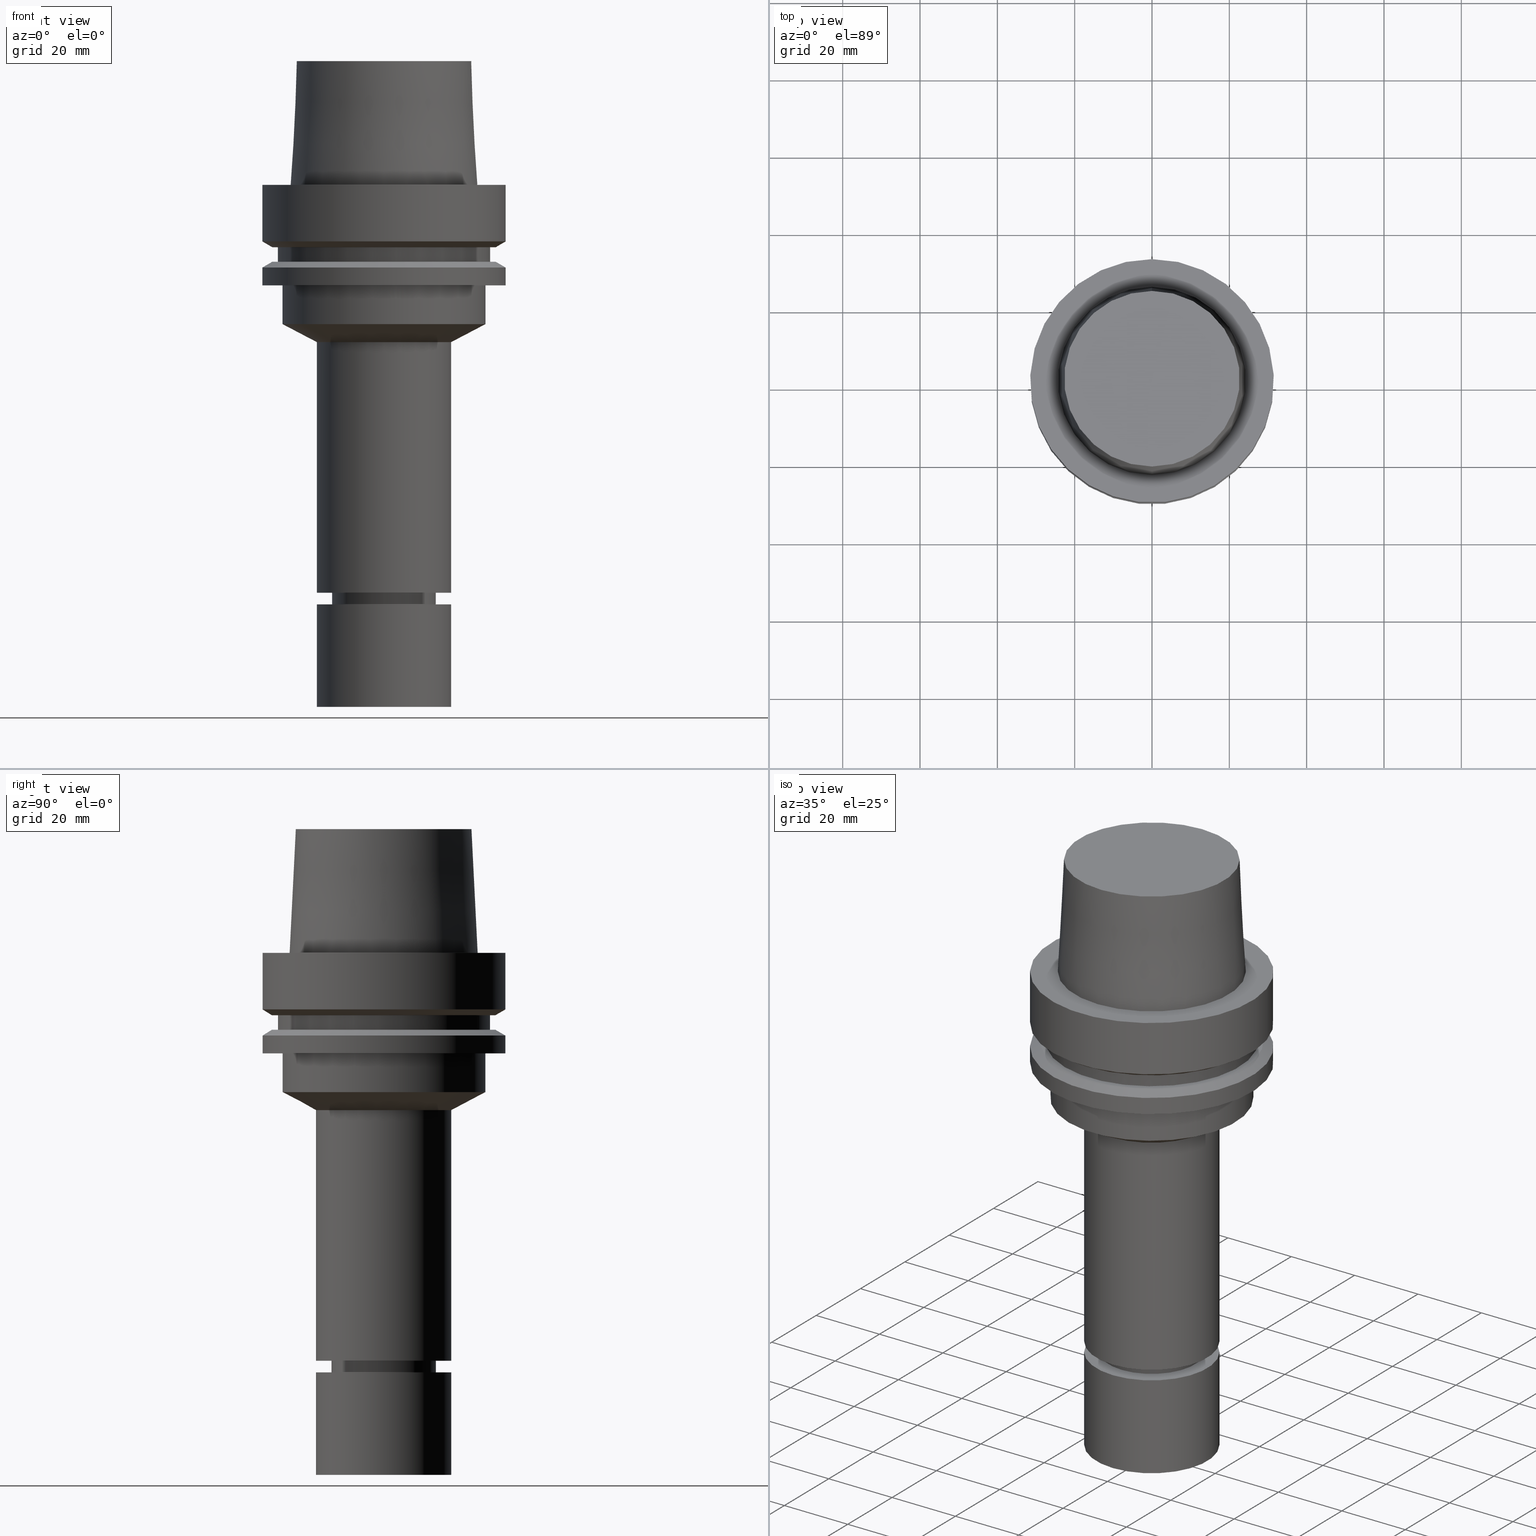
[diagram: canonical four-view strip — front | top / right | iso, engineering-drawing reading convention]
A machine part, canonical four-view strip (front | top / right | iso — engineering-drawing reading convention). The complete STEP part file that produces these views, byte-faithful:
ISO-10303-21;
HEADER;
FILE_DESCRIPTION((''),'1');
FILE_NAME('V:/90_\X2\53D65F9730C730FC30BF\X0\/00_\X2\6DE18DEF30C730FC30BF\X0\/ALL/HSK-BKUS\X2\52A05DE556F3\X0\_201801/HSK-A63-MEGAER/HSK-A63-MEGAER20-135NL.stp','2018-02-01T02:46:07',(''),(''),'Spatial Interop R21 SP3','Kubotek KeyCreator 2011 V10.0.2 (22737)',' ');
FILE_SCHEMA(('automotive_design'));
ENDSEC;
DATA;
#1=MECHANICAL_DESIGN_GEOMETRIC_PRESENTATION_REPRESENTATION(' ',(#14,#15,#16,#17,#18,#19,#20,#21,#22,#23,#24,#25,#26,#27,#28,#29,#30,#31,#32,#33,#34,#35,#36,#37,#38,#39,#40,#41,#42,#43,#44,#45,#46,#47,#48,#49,#50,#51,#52,#53,#54,#55,#56,#57,#58,#59),#10);
#2=PRODUCT_DEFINITION_CONTEXT('',#60,'design');
#3=APPLICATION_PROTOCOL_DEFINITION('INTERNATIONAL STANDARD','automotive_design',1994,#60);
#4=PRODUCT_CATEGORY_RELATIONSHIP('NONE','NONE',#61,#62);
#5=SHAPE_DEFINITION_REPRESENTATION(#63,#64);
#6=PRODUCT_DEFINITION_CONTEXT('',#65,'design');
#7=APPLICATION_PROTOCOL_DEFINITION('INTERNATIONAL STANDARD','automotive_design',1994,#65);
#8=PRODUCT_CATEGORY_RELATIONSHIP('NONE','NONE',#66,#67);
#9=SHAPE_DEFINITION_REPRESENTATION(#68,#69);
#10= (GEOMETRIC_REPRESENTATION_CONTEXT(3)GLOBAL_UNCERTAINTY_ASSIGNED_CONTEXT((#72))GLOBAL_UNIT_ASSIGNED_CONTEXT((#74,#75,#76))REPRESENTATION_CONTEXT('NONE','WORKSPACE'));
#14=STYLED_ITEM('',(#78,#79),#80);
#15=STYLED_ITEM('',(#81,#82),#83);
#16=STYLED_ITEM('',(#84,#85),#86);
#17=STYLED_ITEM('',(#87),#88);
#18=STYLED_ITEM('',(#89,#90),#91);
#19=STYLED_ITEM('',(#92,#93),#94);
#20=STYLED_ITEM('',(#95,#96),#97);
#21=STYLED_ITEM('',(#98),#99);
#22=STYLED_ITEM('',(#100,#101),#102);
#23=STYLED_ITEM('',(#103,#104),#105);
#24=STYLED_ITEM('',(#106,#107),#108);
#25=STYLED_ITEM('',(#109,#110),#111);
#26=STYLED_ITEM('',(#112),#113);
#27=STYLED_ITEM('',(#114),#115);
#28=STYLED_ITEM('',(#116),#117);
#29=STYLED_ITEM('',(#118),#119);
#30=STYLED_ITEM('',(#120),#121);
#31=STYLED_ITEM('',(#122,#123),#124);
#32=STYLED_ITEM('',(#125),#126);
#33=STYLED_ITEM('',(#127,#128),#129);
#34=STYLED_ITEM('',(#130),#131);
#35=STYLED_ITEM('',(#132,#133),#134);
#36=STYLED_ITEM('',(#135,#136),#137);
#37=STYLED_ITEM('',(#138,#139),#140);
#38=STYLED_ITEM('',(#141,#142),#143);
#39=STYLED_ITEM('',(#144,#145),#146);
#40=STYLED_ITEM('',(#147,#148),#149);
#41=STYLED_ITEM('',(#150,#151),#152);
#42=STYLED_ITEM('',(#153,#154),#155);
#43=STYLED_ITEM('',(#156),#157);
#44=STYLED_ITEM('',(#158),#159);
#45=STYLED_ITEM('',(#160,#161),#162);
#46=STYLED_ITEM('',(#163),#164);
#47=STYLED_ITEM('',(#165),#166);
#48=STYLED_ITEM('',(#167,#168),#169);
#49=STYLED_ITEM('',(#170,#171),#172);
#50=STYLED_ITEM('',(#173,#174),#175);
#51=STYLED_ITEM('',(#176),#177);
#52=STYLED_ITEM('',(#178,#179),#180);
#53=STYLED_ITEM('',(#181),#182);
#54=STYLED_ITEM('',(#183),#184);
#55=STYLED_ITEM('',(#185),#186);
#56=STYLED_ITEM('',(#187),#188);
#57=STYLED_ITEM('',(#189),#190);
#58=STYLED_ITEM('',(#191),#192);
#59=STYLED_ITEM('',(#193),#194);
#60=APPLICATION_CONTEXT(' ');
#61=PRODUCT_CATEGORY('part','NONE');
#62=PRODUCT_RELATED_PRODUCT_CATEGORY('detail',' ',(#195));
#63=PRODUCT_DEFINITION_SHAPE('NONE','NONE',#196);
#64=ADVANCED_BREP_SHAPE_REPRESENTATION('Unnamed[1]',(#94,#197),#10);
#65=APPLICATION_CONTEXT(' ');
#66=PRODUCT_CATEGORY('part','NONE');
#67=PRODUCT_RELATED_PRODUCT_CATEGORY('detail',' ',(#198));
#68=PRODUCT_DEFINITION_SHAPE('NONE','NONE',#199);
#69=ADVANCED_BREP_SHAPE_REPRESENTATION('Unnamed[1]',(#169,#200),#10);
#72=UNCERTAINTY_MEASURE_WITH_UNIT(LENGTH_MEASURE(1.0E-006),#74,'','');
#74= (CONVERSION_BASED_UNIT('MILLIMETRE',#203)LENGTH_UNIT()NAMED_UNIT(#206));
#75= (NAMED_UNIT(#208)PLANE_ANGLE_UNIT()SI_UNIT($,.RADIAN.));
#76= (NAMED_UNIT(#208)SOLID_ANGLE_UNIT()SI_UNIT($,.STERADIAN.));
#78=PRESENTATION_STYLE_ASSIGNMENT((#214));
#79=PRESENTATION_STYLE_ASSIGNMENT((#215));
#80=ADVANCED_FACE('Unnamed[1]',(#216,#217),#218,.T.);
#81=PRESENTATION_STYLE_ASSIGNMENT((#219));
#82=PRESENTATION_STYLE_ASSIGNMENT((#220));
#83=ADVANCED_FACE('Unnamed[1]',(#221,#222),#223,.T.);
#84=PRESENTATION_STYLE_ASSIGNMENT((#224));
#85=PRESENTATION_STYLE_ASSIGNMENT((#225));
#86=ADVANCED_FACE('Unnamed[1]',(#226,#227),#228,.T.);
#87=PRESENTATION_STYLE_ASSIGNMENT((#229));
#88=EDGE_CURVE('Unnamed[1]',#230,#230,#231,.T.);
#89=PRESENTATION_STYLE_ASSIGNMENT((#232));
#90=PRESENTATION_STYLE_ASSIGNMENT((#233));
#91=ADVANCED_FACE('Unnamed[1]',(#234,#235),#236,.T.);
#92=PRESENTATION_STYLE_ASSIGNMENT((#237));
#93=PRESENTATION_STYLE_ASSIGNMENT((#238));
#94=MANIFOLD_SOLID_BREP('Unnamed[1]',#239);
#95=PRESENTATION_STYLE_ASSIGNMENT((#240));
#96=PRESENTATION_STYLE_ASSIGNMENT((#241));
#97=ADVANCED_FACE('Unnamed[1]',(#242,#243),#244,.T.);
#98=PRESENTATION_STYLE_ASSIGNMENT((#245));
#99=EDGE_CURVE('Unnamed[1]',#246,#246,#247,.T.);
#100=PRESENTATION_STYLE_ASSIGNMENT((#248));
#101=PRESENTATION_STYLE_ASSIGNMENT((#249));
#102=ADVANCED_FACE('Unnamed[1]',(#250),#251,.T.);
#103=PRESENTATION_STYLE_ASSIGNMENT((#252));
#104=PRESENTATION_STYLE_ASSIGNMENT((#253));
#105=ADVANCED_FACE('Unnamed[1]',(#254,#255),#256,.T.);
#106=PRESENTATION_STYLE_ASSIGNMENT((#257));
#107=PRESENTATION_STYLE_ASSIGNMENT((#258));
#108=ADVANCED_FACE('Unnamed[1]',(#259),#260,.T.);
#109=PRESENTATION_STYLE_ASSIGNMENT((#261));
#110=PRESENTATION_STYLE_ASSIGNMENT((#262));
#111=ADVANCED_FACE('Unnamed[1]',(#263,#264),#265,.T.);
#112=PRESENTATION_STYLE_ASSIGNMENT((#266));
#113=EDGE_CURVE('Unnamed[1]',#267,#267,#268,.T.);
#114=PRESENTATION_STYLE_ASSIGNMENT((#269));
#115=EDGE_CURVE('Unnamed[1]',#270,#270,#271,.T.);
#116=PRESENTATION_STYLE_ASSIGNMENT((#272));
#117=EDGE_CURVE('Unnamed[1]',#273,#273,#274,.T.);
#118=PRESENTATION_STYLE_ASSIGNMENT((#275));
#119=EDGE_CURVE('Unnamed[1]',#276,#276,#277,.T.);
#120=PRESENTATION_STYLE_ASSIGNMENT((#278));
#121=EDGE_CURVE('Unnamed[1]',#279,#279,#280,.T.);
#122=PRESENTATION_STYLE_ASSIGNMENT((#281));
#123=PRESENTATION_STYLE_ASSIGNMENT((#282));
#124=ADVANCED_FACE('Unnamed[1]',(#283,#284),#285,.T.);
#125=PRESENTATION_STYLE_ASSIGNMENT((#286));
#126=EDGE_CURVE('Unnamed[1]',#287,#287,#288,.T.);
#127=PRESENTATION_STYLE_ASSIGNMENT((#289));
#128=PRESENTATION_STYLE_ASSIGNMENT((#290));
#129=ADVANCED_FACE('Unnamed[1]',(#291,#292),#293,.T.);
#130=PRESENTATION_STYLE_ASSIGNMENT((#294));
#131=EDGE_CURVE('Unnamed[1]',#295,#295,#296,.T.);
#132=PRESENTATION_STYLE_ASSIGNMENT((#297));
#133=PRESENTATION_STYLE_ASSIGNMENT((#298));
#134=ADVANCED_FACE('Unnamed[1]',(#299,#300),#301,.T.);
#135=PRESENTATION_STYLE_ASSIGNMENT((#302));
#136=PRESENTATION_STYLE_ASSIGNMENT((#303));
#137=ADVANCED_FACE('Unnamed[1]',(#304,#305),#306,.T.);
#138=PRESENTATION_STYLE_ASSIGNMENT((#307));
#139=PRESENTATION_STYLE_ASSIGNMENT((#308));
#140=ADVANCED_FACE('Unnamed[1]',(#309,#310),#311,.T.);
#141=PRESENTATION_STYLE_ASSIGNMENT((#312));
#142=PRESENTATION_STYLE_ASSIGNMENT((#313));
#143=ADVANCED_FACE('Unnamed[1]',(#314,#315),#316,.T.);
#144=PRESENTATION_STYLE_ASSIGNMENT((#317));
#145=PRESENTATION_STYLE_ASSIGNMENT((#318));
#146=ADVANCED_FACE('Unnamed[1]',(#319,#320),#321,.T.);
#147=PRESENTATION_STYLE_ASSIGNMENT((#322));
#148=PRESENTATION_STYLE_ASSIGNMENT((#323));
#149=ADVANCED_FACE('Unnamed[1]',(#324,#325),#326,.T.);
#150=PRESENTATION_STYLE_ASSIGNMENT((#327));
#151=PRESENTATION_STYLE_ASSIGNMENT((#328));
#152=ADVANCED_FACE('Unnamed[1]',(#329,#330),#331,.T.);
#153=PRESENTATION_STYLE_ASSIGNMENT((#332));
#154=PRESENTATION_STYLE_ASSIGNMENT((#333));
#155=ADVANCED_FACE('Unnamed[1]',(#334),#335,.T.);
#156=PRESENTATION_STYLE_ASSIGNMENT((#336));
#157=EDGE_CURVE('Unnamed[1]',#337,#337,#338,.T.);
#158=PRESENTATION_STYLE_ASSIGNMENT((#339));
#159=EDGE_CURVE('Unnamed[1]',#340,#340,#341,.T.);
#160=PRESENTATION_STYLE_ASSIGNMENT((#342));
#161=PRESENTATION_STYLE_ASSIGNMENT((#343));
#162=ADVANCED_FACE('Unnamed[1]',(#344,#345),#346,.T.);
#163=PRESENTATION_STYLE_ASSIGNMENT((#347));
#164=EDGE_CURVE('Unnamed[1]',#348,#348,#349,.T.);
#165=PRESENTATION_STYLE_ASSIGNMENT((#350));
#166=EDGE_CURVE('Unnamed[1]',#351,#351,#352,.T.);
#167=PRESENTATION_STYLE_ASSIGNMENT((#353));
#168=PRESENTATION_STYLE_ASSIGNMENT((#354));
#169=MANIFOLD_SOLID_BREP('Unnamed[1]',#355);
#170=PRESENTATION_STYLE_ASSIGNMENT((#356));
#171=PRESENTATION_STYLE_ASSIGNMENT((#357));
#172=ADVANCED_FACE('Unnamed[1]',(#358,#359),#360,.T.);
#173=PRESENTATION_STYLE_ASSIGNMENT((#361));
#174=PRESENTATION_STYLE_ASSIGNMENT((#362));
#175=ADVANCED_FACE('Unnamed[1]',(#363),#364,.T.);
#176=PRESENTATION_STYLE_ASSIGNMENT((#365));
#177=EDGE_CURVE('Unnamed[1]',#366,#366,#367,.T.);
#178=PRESENTATION_STYLE_ASSIGNMENT((#368));
#179=PRESENTATION_STYLE_ASSIGNMENT((#369));
#180=ADVANCED_FACE('Unnamed[1]',(#370,#371),#372,.T.);
#181=PRESENTATION_STYLE_ASSIGNMENT((#373));
#182=EDGE_CURVE('Unnamed[1]',#374,#374,#375,.T.);
#183=PRESENTATION_STYLE_ASSIGNMENT((#376));
#184=EDGE_CURVE('Unnamed[1]',#377,#377,#378,.T.);
#185=PRESENTATION_STYLE_ASSIGNMENT((#379));
#186=EDGE_CURVE('Unnamed[1]',#380,#380,#381,.T.);
#187=PRESENTATION_STYLE_ASSIGNMENT((#382));
#188=EDGE_CURVE('Unnamed[1]',#383,#383,#384,.T.);
#189=PRESENTATION_STYLE_ASSIGNMENT((#385));
#190=EDGE_CURVE('Unnamed[1]',#386,#386,#387,.T.);
#191=PRESENTATION_STYLE_ASSIGNMENT((#388));
#192=EDGE_CURVE('Unnamed[1]',#389,#389,#390,.T.);
#193=PRESENTATION_STYLE_ASSIGNMENT((#391));
#194=EDGE_CURVE('Unnamed[1]',#392,#392,#393,.T.);
#195=PRODUCT('Unnamed[1]','Unnamed[1]','PART-Unnamed[1]-DESC',(#394));
#196=PRODUCT_DEFINITION('NONE','NONE',#395,#2);
#197=AXIS2_PLACEMENT_3D('',#396,#397,#398);
#198=PRODUCT('Unnamed[1]','Unnamed[1]','PART-Unnamed[1]-DESC',(#399));
#199=PRODUCT_DEFINITION('NONE','NONE',#400,#6);
#200=AXIS2_PLACEMENT_3D('',#401,#402,#403);
#203=LENGTH_MEASURE_WITH_UNIT(LENGTH_MEASURE(1.0),#404);
#206=DIMENSIONAL_EXPONENTS(1.0,0.0,0.0,0.0,0.0,0.0,0.0);
#208=DIMENSIONAL_EXPONENTS(0.0,0.0,0.0,0.0,0.0,0.0,0.0);
#214=SURFACE_STYLE_USAGE(.BOTH.,#405);
#215=CURVE_STYLE('',#406,POSITIVE_LENGTH_MEASURE(1000.0),#407);
#216=FACE_BOUND('',#408,.T.);
#217=FACE_BOUND('',#409,.T.);
#218=CONICAL_SURFACE('',#410,21.8999999999999,1.08379854829247);
#219=SURFACE_STYLE_USAGE(.BOTH.,#411);
#220=CURVE_STYLE('',#412,POSITIVE_LENGTH_MEASURE(1000.0),#413);
#221=FACE_BOUND('',#414,.T.);
#222=FACE_BOUND('',#415,.T.);
#223=CYLINDRICAL_SURFACE('',#416,17.4999999999999);
#224=SURFACE_STYLE_USAGE(.BOTH.,#417);
#225=CURVE_STYLE('',#418,POSITIVE_LENGTH_MEASURE(1000.0),#419);
#226=FACE_BOUND('',#420,.T.);
#227=FACE_BOUND('',#421,.T.);
#228=CYLINDRICAL_SURFACE('',#422,17.5);
#229=CURVE_STYLE('',#423,POSITIVE_LENGTH_MEASURE(1000.0),#424);
#230=VERTEX_POINT('',#425);
#231=CIRCLE('',#426,17.5);
#232=SURFACE_STYLE_USAGE(.BOTH.,#427);
#233=CURVE_STYLE('',#428,POSITIVE_LENGTH_MEASURE(1000.0),#429);
#234=FACE_BOUND('',#430,.T.);
#235=FACE_BOUND('',#431,.T.);
#236=CYLINDRICAL_SURFACE('',#432,27.4999999999994);
#237=SURFACE_STYLE_USAGE(.BOTH.,#433);
#238=CURVE_STYLE('',#434,POSITIVE_LENGTH_MEASURE(1000.0),#435);
#239=CLOSED_SHELL('',(#175,#124,#180,#129,#97,#137,#83,#80,#143,#172,#149,#140,#162,#91,#105,#134,#111,#146,#152,#155));
#240=SURFACE_STYLE_USAGE(.BOTH.,#436);
#241=CURVE_STYLE('',#437,POSITIVE_LENGTH_MEASURE(1000.0),#438);
#242=FACE_BOUND('',#439,.T.);
#243=FACE_BOUND('',#440,.T.);
#244=CYLINDRICAL_SURFACE('',#441,13.4999999999956);
#245=CURVE_STYLE('',#442,POSITIVE_LENGTH_MEASURE(1000.0),#443);
#246=VERTEX_POINT('',#444);
#247=CIRCLE('',#445,22.715);
#248=SURFACE_STYLE_USAGE(.BOTH.,#446);
#249=CURVE_STYLE('',#447,POSITIVE_LENGTH_MEASURE(1000.0),#448);
#250=FACE_OUTER_BOUND('',#449,.T.);
#251=PLANE('',#450);
#252=SURFACE_STYLE_USAGE(.BOTH.,#451);
#253=CURVE_STYLE('',#452,POSITIVE_LENGTH_MEASURE(1000.0),#453);
#254=FACE_OUTER_BOUND('',#454,.T.);
#255=FACE_BOUND('',#455,.T.);
#256=PLANE('',#456);
#257=SURFACE_STYLE_USAGE(.BOTH.,#457);
#258=CURVE_STYLE('',#458,POSITIVE_LENGTH_MEASURE(1000.0),#459);
#259=FACE_OUTER_BOUND('',#460,.T.);
#260=PLANE('',#461);
#261=SURFACE_STYLE_USAGE(.BOTH.,#462);
#262=CURVE_STYLE('',#463,POSITIVE_LENGTH_MEASURE(1000.0),#464);
#263=FACE_BOUND('',#465,.T.);
#264=FACE_BOUND('',#466,.T.);
#265=CYLINDRICAL_SURFACE('',#467,31.5);
#266=CURVE_STYLE('',#468,POSITIVE_LENGTH_MEASURE(1000.0),#469);
#267=VERTEX_POINT('',#470);
#268=CIRCLE('',#471,13.4999999999908);
#269=CURVE_STYLE('',#472,POSITIVE_LENGTH_MEASURE(1000.0),#473);
#270=VERTEX_POINT('',#474);
#271=CIRCLE('',#475,26.3);
#272=CURVE_STYLE('',#476,POSITIVE_LENGTH_MEASURE(1000.0),#477);
#273=VERTEX_POINT('',#478);
#274=CIRCLE('',#479,31.4999999999998);
#275=CURVE_STYLE('',#480,POSITIVE_LENGTH_MEASURE(1000.0),#481);
#276=VERTEX_POINT('',#482);
#277=CIRCLE('',#483,31.5000000000001);
#278=CURVE_STYLE('',#484,POSITIVE_LENGTH_MEASURE(1000.0),#485);
#279=VERTEX_POINT('',#486);
#280=CIRCLE('',#487,28.8975952641919);
#281=SURFACE_STYLE_USAGE(.BOTH.,#488);
#282=CURVE_STYLE('',#489,POSITIVE_LENGTH_MEASURE(1000.0),#490);
#283=FACE_BOUND('',#491,.T.);
#284=FACE_BOUND('',#492,.T.);
#285=CONICAL_SURFACE('',#493,11.9499999999988,0.523598775598649);
#286=CURVE_STYLE('',#494,POSITIVE_LENGTH_MEASURE(1000.0),#495);
#287=VERTEX_POINT('',#496);
#288=CIRCLE('',#497,27.5);
#289=SURFACE_STYLE_USAGE(.BOTH.,#498);
#290=CURVE_STYLE('',#499,POSITIVE_LENGTH_MEASURE(1000.0),#500);
#291=FACE_BOUND('',#501,.T.);
#292=FACE_BOUND('',#502,.T.);
#293=CONICAL_SURFACE('',#503,13.0000000000002,1.04719755119489);
#294=CURVE_STYLE('',#504,POSITIVE_LENGTH_MEASURE(1000.0),#505);
#295=VERTEX_POINT('',#506);
#296=CIRCLE('',#507,11.3999999999978);
#297=SURFACE_STYLE_USAGE(.BOTH.,#508);
#298=CURVE_STYLE('',#509,POSITIVE_LENGTH_MEASURE(1000.0),#510);
#299=FACE_BOUND('',#511,.T.);
#300=FACE_BOUND('',#512,.T.);
#301=CONICAL_SURFACE('',#513,30.1987976320959,1.04719755119657);
#302=SURFACE_STYLE_USAGE(.BOTH.,#514);
#303=CURVE_STYLE('',#515,POSITIVE_LENGTH_MEASURE(1000.0),#516);
#304=FACE_OUTER_BOUND('',#517,.T.);
#305=FACE_BOUND('',#518,.T.);
#306=PLANE('',#519);
#307=SURFACE_STYLE_USAGE(.BOTH.,#520);
#308=CURVE_STYLE('',#521,POSITIVE_LENGTH_MEASURE(1000.0),#522);
#309=FACE_BOUND('',#523,.T.);
#310=FACE_BOUND('',#524,.T.);
#311=CONICAL_SURFACE('',#525,30.1987976320959,1.04719755119657);
#312=SURFACE_STYLE_USAGE(.BOTH.,#526);
#313=CURVE_STYLE('',#527,POSITIVE_LENGTH_MEASURE(1000.0),#528);
#314=FACE_BOUND('',#529,.T.);
#315=FACE_BOUND('',#530,.T.);
#316=CYLINDRICAL_SURFACE('',#531,26.3);
#317=SURFACE_STYLE_USAGE(.BOTH.,#532);
#318=CURVE_STYLE('',#533,POSITIVE_LENGTH_MEASURE(1000.0),#534);
#319=FACE_BOUND('',#535,.T.);
#320=FACE_OUTER_BOUND('',#536,.T.);
#321=PLANE('',#537);
#322=SURFACE_STYLE_USAGE(.BOTH.,#538);
#323=CURVE_STYLE('',#539,POSITIVE_LENGTH_MEASURE(1000.0),#540);
#324=FACE_BOUND('',#541,.T.);
#325=FACE_BOUND('',#542,.T.);
#326=CYLINDRICAL_SURFACE('',#543,31.4999999999999);
#327=SURFACE_STYLE_USAGE(.BOTH.,#544);
#328=CURVE_STYLE('',#545,POSITIVE_LENGTH_MEASURE(1000.0),#546);
#329=FACE_BOUND('',#547,.T.);
#330=FACE_BOUND('',#548,.T.);
#331=CONICAL_SURFACE('',#549,23.515,0.0499583957219433);
#332=SURFACE_STYLE_USAGE(.BOTH.,#550);
#333=CURVE_STYLE('',#551,POSITIVE_LENGTH_MEASURE(1000.0),#552);
#334=FACE_OUTER_BOUND('',#553,.T.);
#335=PLANE('',#554);
#336=CURVE_STYLE('',#555,POSITIVE_LENGTH_MEASURE(1000.0),#556);
#337=VERTEX_POINT('',#557);
#338=CIRCLE('',#558,12.4999999999999);
#339=CURVE_STYLE('',#559,POSITIVE_LENGTH_MEASURE(1000.0),#560);
#340=VERTEX_POINT('',#561);
#341=CIRCLE('',#562,17.5);
#342=SURFACE_STYLE_USAGE(.BOTH.,#563);
#343=CURVE_STYLE('',#564,POSITIVE_LENGTH_MEASURE(1000.0),#565);
#344=FACE_BOUND('',#566,.T.);
#345=FACE_OUTER_BOUND('',#567,.T.);
#346=PLANE('',#568);
#347=CURVE_STYLE('',#569,POSITIVE_LENGTH_MEASURE(1000.0),#570);
#348=VERTEX_POINT('',#571);
#349=CIRCLE('',#572,26.3);
#350=CURVE_STYLE('',#573,POSITIVE_LENGTH_MEASURE(1000.0),#574);
#351=VERTEX_POINT('',#575);
#352=CIRCLE('',#576,13.5000000000005);
#353=SURFACE_STYLE_USAGE(.BOTH.,#577);
#354=CURVE_STYLE('',#578,POSITIVE_LENGTH_MEASURE(1000.0),#579);
#355=CLOSED_SHELL('',(#102,#108,#86));
#356=SURFACE_STYLE_USAGE(.BOTH.,#580);
#357=CURVE_STYLE('',#581,POSITIVE_LENGTH_MEASURE(1000.0),#582);
#358=FACE_OUTER_BOUND('',#583,.T.);
#359=FACE_BOUND('',#584,.T.);
#360=PLANE('',#585);
#361=SURFACE_STYLE_USAGE(.BOTH.,#586);
#362=CURVE_STYLE('',#587,POSITIVE_LENGTH_MEASURE(1000.0),#588);
#363=FACE_OUTER_BOUND('',#589,.T.);
#364=PLANE('',#590);
#365=CURVE_STYLE('',#591,POSITIVE_LENGTH_MEASURE(1000.0),#592);
#366=VERTEX_POINT('',#593);
#367=CIRCLE('',#594,17.4999999999999);
#368=SURFACE_STYLE_USAGE(.BOTH.,#595);
#369=CURVE_STYLE('',#596,POSITIVE_LENGTH_MEASURE(1000.0),#597);
#370=FACE_BOUND('',#598,.T.);
#371=FACE_BOUND('',#599,.T.);
#372=CYLINDRICAL_SURFACE('',#600,12.4999999999999);
#373=CURVE_STYLE('',#601,POSITIVE_LENGTH_MEASURE(1000.0),#602);
#374=VERTEX_POINT('',#603);
#375=CIRCLE('',#604,24.315);
#376=CURVE_STYLE('',#605,POSITIVE_LENGTH_MEASURE(1000.0),#606);
#377=VERTEX_POINT('',#607);
#378=CIRCLE('',#608,31.5);
#379=CURVE_STYLE('',#609,POSITIVE_LENGTH_MEASURE(1000.0),#610);
#380=VERTEX_POINT('',#611);
#381=CIRCLE('',#612,27.4999999999989);
#382=CURVE_STYLE('',#613,POSITIVE_LENGTH_MEASURE(1000.0),#614);
#383=VERTEX_POINT('',#615);
#384=CIRCLE('',#616,31.5);
#385=CURVE_STYLE('',#617,POSITIVE_LENGTH_MEASURE(1000.0),#618);
#386=VERTEX_POINT('',#619);
#387=CIRCLE('',#620,17.5);
#388=CURVE_STYLE('',#621,POSITIVE_LENGTH_MEASURE(1000.0),#622);
#389=VERTEX_POINT('',#623);
#390=CIRCLE('',#624,28.8975952641919);
#391=CURVE_STYLE('',#625,POSITIVE_LENGTH_MEASURE(1000.0),#626);
#392=VERTEX_POINT('',#627);
#393=CIRCLE('',#628,12.4999999999998);
#394=PRODUCT_CONTEXT('',#60,'mechanical');
#395=PRODUCT_DEFINITION_FORMATION_WITH_SPECIFIED_SOURCE(' ','NONE',#195,.NOT_KNOWN.);
#396=CARTESIAN_POINT('',(0.0,0.0,0.0));
#397=DIRECTION('',(0.0,0.0,1.0));
#398=DIRECTION('',(1.0,0.0,0.0));
#399=PRODUCT_CONTEXT('',#65,'mechanical');
#400=PRODUCT_DEFINITION_FORMATION_WITH_SPECIFIED_SOURCE(' ','NONE',#198,.NOT_KNOWN.);
#401=CARTESIAN_POINT('',(0.0,0.0,0.0));
#402=DIRECTION('',(0.0,0.0,1.0));
#403=DIRECTION('',(1.0,0.0,0.0));
#404= (NAMED_UNIT(#206)LENGTH_UNIT()SI_UNIT(.MILLI.,.METRE.));
#405=SURFACE_SIDE_STYLE('',(#630));
#406=DRAUGHTING_PRE_DEFINED_CURVE_FONT('continuous');
#407=COLOUR_RGB('',0.0,1.0,0.0);
#408=EDGE_LOOP('',(#631));
#409=EDGE_LOOP('',(#632));
#410=AXIS2_PLACEMENT_3D('',#633,#634,#635);
#411=SURFACE_SIDE_STYLE('',(#636));
#412=DRAUGHTING_PRE_DEFINED_CURVE_FONT('continuous');
#413=COLOUR_RGB('',0.0,1.0,0.0);
#414=EDGE_LOOP('',(#637));
#415=EDGE_LOOP('',(#638));
#416=AXIS2_PLACEMENT_3D('',#639,#640,#641);
#417=SURFACE_SIDE_STYLE('',(#642));
#418=DRAUGHTING_PRE_DEFINED_CURVE_FONT('continuous');
#419=COLOUR_RGB('',0.0,1.0,0.0);
#420=EDGE_LOOP('',(#643));
#421=EDGE_LOOP('',(#644));
#422=AXIS2_PLACEMENT_3D('',#645,#646,#647);
#423=DRAUGHTING_PRE_DEFINED_CURVE_FONT('continuous');
#424=COLOUR_RGB('',0.0,1.0,0.0);
#425=CARTESIAN_POINT('',(6.64370981970575E-015,17.5,-108.500015258789));
#426=AXIS2_PLACEMENT_3D('',#648,#649,#650);
#427=SURFACE_SIDE_STYLE('',(#651));
#428=DRAUGHTING_PRE_DEFINED_CURVE_FONT('continuous');
#429=COLOUR_RGB('',0.0,1.0,0.0);
#430=EDGE_LOOP('',(#652));
#431=EDGE_LOOP('',(#653));
#432=AXIS2_PLACEMENT_3D('',#654,#655,#656);
#433=SURFACE_SIDE_STYLE('',(#657));
#434=DRAUGHTING_PRE_DEFINED_CURVE_FONT('continuous');
#435=COLOUR_RGB('',0.0,1.0,0.0);
#436=SURFACE_SIDE_STYLE('',(#658));
#437=DRAUGHTING_PRE_DEFINED_CURVE_FONT('continuous');
#438=COLOUR_RGB('',0.0,1.0,0.0);
#439=EDGE_LOOP('',(#659));
#440=EDGE_LOOP('',(#660));
#441=AXIS2_PLACEMENT_3D('',#661,#662,#663);
#442=DRAUGHTING_PRE_DEFINED_CURVE_FONT('continuous');
#443=COLOUR_RGB('',0.0,1.0,0.0);
#444=CARTESIAN_POINT('',(-1.95943487863576E-015,22.715,32.0));
#445=AXIS2_PLACEMENT_3D('',#664,#665,#666);
#446=SURFACE_SIDE_STYLE('',(#667));
#447=DRAUGHTING_PRE_DEFINED_CURVE_FONT('continuous');
#448=COLOUR_RGB('',0.0,1.0,0.0);
#449=EDGE_LOOP('',(#668));
#450=AXIS2_PLACEMENT_3D('',#669,#670,#671);
#451=SURFACE_SIDE_STYLE('',(#672));
#452=DRAUGHTING_PRE_DEFINED_CURVE_FONT('continuous');
#453=COLOUR_RGB('',0.0,1.0,0.0);
#454=EDGE_LOOP('',(#673));
#455=EDGE_LOOP('',(#674));
#456=AXIS2_PLACEMENT_3D('',#675,#676,#677);
#457=SURFACE_SIDE_STYLE('',(#678));
#458=DRAUGHTING_PRE_DEFINED_CURVE_FONT('continuous');
#459=COLOUR_RGB('',0.0,1.0,0.0);
#460=EDGE_LOOP('',(#679));
#461=AXIS2_PLACEMENT_3D('',#680,#681,#682);
#462=SURFACE_SIDE_STYLE('',(#683));
#463=DRAUGHTING_PRE_DEFINED_CURVE_FONT('continuous');
#464=COLOUR_RGB('',0.0,1.0,0.0);
#465=EDGE_LOOP('',(#684));
#466=EDGE_LOOP('',(#685));
#467=AXIS2_PLACEMENT_3D('',#686,#687,#688);
#468=DRAUGHTING_PRE_DEFINED_CURVE_FONT('continuous');
#469=COLOUR_RGB('',0.0,1.0,0.0);
#470=CARTESIAN_POINT('',(6.46001186550228E-015,13.4999999999908,-105.5));
#471=AXIS2_PLACEMENT_3D('',#689,#690,#691);
#472=DRAUGHTING_PRE_DEFINED_CURVE_FONT('continuous');
#473=COLOUR_RGB('',0.0,1.0,0.0);
#474=CARTESIAN_POINT('',(1.59204083889154E-015,26.3,-25.9999999999997));
#475=AXIS2_PLACEMENT_3D('',#692,#693,#694);
#476=DRAUGHTING_PRE_DEFINED_CURVE_FONT('continuous');
#477=COLOUR_RGB('',0.0,1.0,0.0);
#478=CARTESIAN_POINT('',(1.59204083889155E-015,31.4999999999998,-25.9999999999999));
#479=AXIS2_PLACEMENT_3D('',#695,#696,#697);
#480=DRAUGHTING_PRE_DEFINED_CURVE_FONT('continuous');
#481=COLOUR_RGB('',0.0,1.0,0.0);
#482=CARTESIAN_POINT('',(-3.88267476788467E-031,31.5000000000001,3.85763741731417E-015));
#483=AXIS2_PLACEMENT_3D('',#698,#699,#700);
#484=DRAUGHTING_PRE_DEFINED_CURVE_FONT('continuous');
#485=COLOUR_RGB('',0.0,1.0,0.0);
#486=CARTESIAN_POINT('',(1.21699275665268E-015,28.8975952641919,-19.875));
#487=AXIS2_PLACEMENT_3D('',#701,#702,#703);
#488=SURFACE_SIDE_STYLE('',(#704));
#489=DRAUGHTING_PRE_DEFINED_CURVE_FONT('continuous');
#490=COLOUR_RGB('',0.0,1.0,0.0);
#491=EDGE_LOOP('',(#705));
#492=EDGE_LOOP('',(#706));
#493=AXIS2_PLACEMENT_3D('',#707,#708,#709);
#494=DRAUGHTING_PRE_DEFINED_CURVE_FONT('continuous');
#495=COLOUR_RGB('',0.0,1.0,0.0);
#496=CARTESIAN_POINT('',(9.87371481812537E-016,27.5,-16.1249999999997));
#497=AXIS2_PLACEMENT_3D('',#710,#711,#712);
#498=SURFACE_SIDE_STYLE('',(#713));
#499=DRAUGHTING_PRE_DEFINED_CURVE_FONT('continuous');
#500=COLOUR_RGB('',0.0,1.0,0.0);
#501=EDGE_LOOP('',(#714));
#502=EDGE_LOOP('',(#715));
#503=AXIS2_PLACEMENT_3D('',#716,#717,#718);
#504=DRAUGHTING_PRE_DEFINED_CURVE_FONT('continuous');
#505=COLOUR_RGB('',0.0,1.0,0.0);
#506=CARTESIAN_POINT('',(7.66628896266244E-015,11.3999999999978,-125.2));
#507=AXIS2_PLACEMENT_3D('',#719,#720,#721);
#508=SURFACE_SIDE_STYLE('',(#722));
#509=DRAUGHTING_PRE_DEFINED_CURVE_FONT('continuous');
#510=COLOUR_RGB('',0.0,1.0,0.0);
#511=EDGE_LOOP('',(#723));
#512=EDGE_LOOP('',(#724));
#513=AXIS2_PLACEMENT_3D('',#725,#726,#727);
#514=SURFACE_SIDE_STYLE('',(#728));
#515=DRAUGHTING_PRE_DEFINED_CURVE_FONT('continuous');
#516=COLOUR_RGB('',0.0,1.0,0.0);
#517=EDGE_LOOP('',(#729));
#518=EDGE_LOOP('',(#730));
#519=AXIS2_PLACEMENT_3D('',#731,#732,#733);
#520=SURFACE_SIDE_STYLE('',(#734));
#521=DRAUGHTING_PRE_DEFINED_CURVE_FONT('continuous');
#522=COLOUR_RGB('',0.0,1.0,0.0);
#523=EDGE_LOOP('',(#735));
#524=EDGE_LOOP('',(#736));
#525=AXIS2_PLACEMENT_3D('',#737,#738,#739);
#526=SURFACE_SIDE_STYLE('',(#740));
#527=DRAUGHTING_PRE_DEFINED_CURVE_FONT('continuous');
#528=COLOUR_RGB('',0.0,1.0,0.0);
#529=EDGE_LOOP('',(#741));
#530=EDGE_LOOP('',(#742));
#531=AXIS2_PLACEMENT_3D('',#743,#744,#745);
#532=SURFACE_SIDE_STYLE('',(#746));
#533=DRAUGHTING_PRE_DEFINED_CURVE_FONT('continuous');
#534=COLOUR_RGB('',0.0,1.0,0.0);
#535=EDGE_LOOP('',(#747));
#536=EDGE_LOOP('',(#748));
#537=AXIS2_PLACEMENT_3D('',#749,#750,#751);
#538=SURFACE_SIDE_STYLE('',(#752));
#539=DRAUGHTING_PRE_DEFINED_CURVE_FONT('continuous');
#540=COLOUR_RGB('',0.0,1.0,0.0);
#541=EDGE_LOOP('',(#753));
#542=EDGE_LOOP('',(#754));
#543=AXIS2_PLACEMENT_3D('',#755,#756,#757);
#544=SURFACE_SIDE_STYLE('',(#758));
#545=DRAUGHTING_PRE_DEFINED_CURVE_FONT('continuous');
#546=COLOUR_RGB('',0.0,1.0,0.0);
#547=EDGE_LOOP('',(#759));
#548=EDGE_LOOP('',(#760));
#549=AXIS2_PLACEMENT_3D('',#761,#762,#763);
#550=SURFACE_SIDE_STYLE('',(#764));
#551=DRAUGHTING_PRE_DEFINED_CURVE_FONT('continuous');
#552=COLOUR_RGB('',0.0,1.0,0.0);
#553=EDGE_LOOP('',(#765));
#554=AXIS2_PLACEMENT_3D('',#766,#767,#768);
#555=DRAUGHTING_PRE_DEFINED_CURVE_FONT('continuous');
#556=COLOUR_RGB('',0.0,1.0,0.0);
#557=CARTESIAN_POINT('',(6.85187894896067E-015,12.4999999999999,-111.899675134597));
#558=AXIS2_PLACEMENT_3D('',#769,#770,#771);
#559=DRAUGHTING_PRE_DEFINED_CURVE_FONT('continuous');
#560=COLOUR_RGB('',0.0,1.0,0.0);
#561=CARTESIAN_POINT('',(6.46001186550228E-015,17.5,-105.5));
#562=AXIS2_PLACEMENT_3D('',#772,#773,#774);
#563=SURFACE_SIDE_STYLE('',(#775));
#564=DRAUGHTING_PRE_DEFINED_CURVE_FONT('continuous');
#565=COLOUR_RGB('',0.0,1.0,0.0);
#566=EDGE_LOOP('',(#776));
#567=EDGE_LOOP('',(#777));
#568=AXIS2_PLACEMENT_3D('',#778,#779,#780);
#569=DRAUGHTING_PRE_DEFINED_CURVE_FONT('continuous');
#570=COLOUR_RGB('',0.0,1.0,0.0);
#571=CARTESIAN_POINT('',(2.20436423846525E-015,26.3,-36.0000000000003));
#572=AXIS2_PLACEMENT_3D('',#781,#782,#783);
#573=DRAUGHTING_PRE_DEFINED_CURVE_FONT('continuous');
#574=COLOUR_RGB('',0.0,1.0,0.0);
#575=CARTESIAN_POINT('',(6.81652644100301E-015,13.5000000000005,-111.322324865405));
#576=AXIS2_PLACEMENT_3D('',#784,#785,#786);
#577=SURFACE_SIDE_STYLE('',(#787));
#578=DRAUGHTING_PRE_DEFINED_CURVE_FONT('continuous');
#579=COLOUR_RGB('',0.0,1.0,0.0);
#580=SURFACE_SIDE_STYLE('',(#788));
#581=DRAUGHTING_PRE_DEFINED_CURVE_FONT('continuous');
#582=COLOUR_RGB('',0.0,1.0,0.0);
#583=EDGE_LOOP('',(#789));
#584=EDGE_LOOP('',(#790));
#585=AXIS2_PLACEMENT_3D('',#791,#792,#793);
#586=SURFACE_SIDE_STYLE('',(#794));
#587=DRAUGHTING_PRE_DEFINED_CURVE_FONT('continuous');
#588=COLOUR_RGB('',0.0,1.0,0.0);
#589=EDGE_LOOP('',(#795));
#590=AXIS2_PLACEMENT_3D('',#796,#797,#798);
#591=DRAUGHTING_PRE_DEFINED_CURVE_FONT('continuous');
#592=COLOUR_RGB('',0.0,1.0,0.0);
#593=CARTESIAN_POINT('',(2.48970289259618E-015,17.4999999999999,-40.6599338573311));
#594=AXIS2_PLACEMENT_3D('',#799,#800,#801);
#595=SURFACE_SIDE_STYLE('',(#802));
#596=DRAUGHTING_PRE_DEFINED_CURVE_FONT('continuous');
#597=COLOUR_RGB('',0.0,1.0,0.0);
#598=EDGE_LOOP('',(#803));
#599=EDGE_LOOP('',(#804));
#600=AXIS2_PLACEMENT_3D('',#805,#806,#807);
#601=DRAUGHTING_PRE_DEFINED_CURVE_FONT('continuous');
#602=COLOUR_RGB('',0.0,1.0,0.0);
#603=CARTESIAN_POINT('',(-2.99705514225764E-031,24.315,2.97772869212679E-015));
#604=AXIS2_PLACEMENT_3D('',#808,#809,#810);
#605=DRAUGHTING_PRE_DEFINED_CURVE_FONT('continuous');
#606=COLOUR_RGB('',0.0,1.0,0.0);
#607=CARTESIAN_POINT('',(1.30899429078397E-015,31.5,-21.3774990747592));
#608=AXIS2_PLACEMENT_3D('',#811,#812,#813);
#609=DRAUGHTING_PRE_DEFINED_CURVE_FONT('continuous');
#610=COLOUR_RGB('',0.0,1.0,0.0);
#611=CARTESIAN_POINT('',(1.21699275665276E-015,27.4999999999989,-19.8750000000013));
#612=AXIS2_PLACEMENT_3D('',#814,#815,#816);
#613=DRAUGHTING_PRE_DEFINED_CURVE_FONT('continuous');
#614=COLOUR_RGB('',0.0,1.0,0.0);
#615=CARTESIAN_POINT('',(8.95369947681261E-016,31.5,-14.6225009252407));
#616=AXIS2_PLACEMENT_3D('',#817,#818,#819);
#617=DRAUGHTING_PRE_DEFINED_CURVE_FONT('continuous');
#618=COLOUR_RGB('',0.0,1.0,0.0);
#619=CARTESIAN_POINT('',(8.26636589424462E-015,17.5,-135.0));
#620=AXIS2_PLACEMENT_3D('',#820,#821,#822);
#621=DRAUGHTING_PRE_DEFINED_CURVE_FONT('continuous');
#622=COLOUR_RGB('',0.0,1.0,0.0);
#623=CARTESIAN_POINT('',(9.87371481812551E-016,28.8975952641919,-16.125));
#624=AXIS2_PLACEMENT_3D('',#823,#824,#825);
#625=DRAUGHTING_PRE_DEFINED_CURVE_FONT('continuous');
#626=COLOUR_RGB('',0.0,1.0,0.0);
#627=CARTESIAN_POINT('',(7.54962568640259E-015,12.4999999999998,-123.294744111673));
#628=AXIS2_PLACEMENT_3D('',#826,#827,#828);
#630=SURFACE_STYLE_FILL_AREA(#829);
#631=ORIENTED_EDGE('',*,*,#164,.F.);
#632=ORIENTED_EDGE('',*,*,#177,.T.);
#633=CARTESIAN_POINT('',(2.34703356553072E-015,4.69406713106143E-015,-38.3299669286657));
#634=DIRECTION('',(-6.12323399573677E-017,-1.22464679914735E-016,1.0));
#635=DIRECTION('',(-1.23259516440783E-032,1.0,1.22464679914735E-016));
#636=SURFACE_STYLE_FILL_AREA(#830);
#637=ORIENTED_EDGE('',*,*,#177,.F.);
#638=ORIENTED_EDGE('',*,*,#159,.T.);
#639=CARTESIAN_POINT('',(4.47485737904923E-015,8.94971475809846E-015,-73.0799669286655));
#640=DIRECTION('',(-6.12323399573677E-017,-1.22464679914735E-016,1.0));
#641=DIRECTION('',(-1.23259516440783E-032,1.0,1.22464679914735E-016));
#642=SURFACE_STYLE_FILL_AREA(#831);
#643=ORIENTED_EDGE('',*,*,#190,.F.);
#644=ORIENTED_EDGE('',*,*,#88,.T.);
#645=CARTESIAN_POINT('',(7.45503785697519E-015,1.49100757139504E-014,-121.750007629394));
#646=DIRECTION('',(6.12323399573677E-017,1.22464679914735E-016,-1.0));
#647=DIRECTION('',(-1.23259516440783E-032,1.0,1.22464679914735E-016));
#648=CARTESIAN_POINT('',(6.64370981970575E-015,1.32874196394115E-014,-108.500015258789));
#649=DIRECTION('',(6.12323399573677E-017,1.22464679914735E-016,-1.0));
#650=DIRECTION('',(-1.23259516440783E-032,1.0,1.22464679914735E-016));
#651=SURFACE_STYLE_FILL_AREA(#832);
#652=ORIENTED_EDGE('',*,*,#126,.F.);
#653=ORIENTED_EDGE('',*,*,#186,.T.);
#654=CARTESIAN_POINT('',(1.10218211923265E-015,2.2043642384653E-015,-18.0000000000005));
#655=DIRECTION('',(-6.12323399573677E-017,-1.22464679914735E-016,1.0));
#656=DIRECTION('',(-1.23259516440783E-032,1.0,1.22464679914735E-016));
#657=SURFACE_STYLE_FILL_AREA(#833);
#658=SURFACE_STYLE_FILL_AREA(#834);
#659=ORIENTED_EDGE('',*,*,#113,.F.);
#660=ORIENTED_EDGE('',*,*,#166,.T.);
#661=CARTESIAN_POINT('',(6.63826915325264E-015,1.32765383065053E-014,-108.411162432703));
#662=DIRECTION('',(-6.12323399573677E-017,-1.22464679914735E-016,1.0));
#663=DIRECTION('',(-1.23259516440783E-032,1.0,1.22464679914735E-016));
#664=CARTESIAN_POINT('',(-1.95943487863576E-015,-3.91886975727153E-015,32.0));
#665=DIRECTION('',(-6.12323399573676E-017,-1.22464679914735E-016,1.0));
#666=DIRECTION('',(-1.23259516440783E-032,1.0,1.22464679914735E-016));
#667=SURFACE_STYLE_FILL_AREA(#835);
#668=ORIENTED_EDGE('',*,*,#190,.T.);
#669=CARTESIAN_POINT('',(8.26636589424462E-015,8.75000000000002,-135.0));
#670=DIRECTION('',(6.12323399573677E-017,1.22464679914735E-016,-1.0));
#671=DIRECTION('',(-1.23259516440783E-032,1.0,1.22464679914735E-016));
#672=SURFACE_STYLE_FILL_AREA(#836);
#673=ORIENTED_EDGE('',*,*,#192,.F.);
#674=ORIENTED_EDGE('',*,*,#126,.T.);
#675=CARTESIAN_POINT('',(9.87371481812544E-016,28.1987976320959,-16.1249999999999));
#676=DIRECTION('',(6.12323399573677E-017,-1.65108768595307E-013,-1.0));
#677=DIRECTION('',(-1.01051690958394E-029,-1.0,1.65108768595307E-013));
#678=SURFACE_STYLE_FILL_AREA(#837);
#679=ORIENTED_EDGE('',*,*,#88,.F.);
#680=CARTESIAN_POINT('',(6.64370981970575E-015,8.75000000000002,-108.500015258789));
#681=DIRECTION('',(-6.12323399573677E-017,-1.22464679914735E-016,1.0));
#682=DIRECTION('',(1.23259516440783E-032,-1.0,-1.22464679914735E-016));
#683=SURFACE_STYLE_FILL_AREA(#838);
#684=ORIENTED_EDGE('',*,*,#119,.F.);
#685=ORIENTED_EDGE('',*,*,#188,.T.);
#686=CARTESIAN_POINT('',(4.47684973840631E-016,8.95369947681262E-016,-7.31125046262035));
#687=DIRECTION('',(-6.12323399573677E-017,-1.22464679914735E-016,1.0));
#688=DIRECTION('',(-1.23259516440783E-032,1.0,1.22464679914735E-016));
#689=CARTESIAN_POINT('',(6.46001186550228E-015,1.29200237310045E-014,-105.5));
#690=DIRECTION('',(-6.12323399573677E-017,-1.22464679914735E-016,1.0));
#691=DIRECTION('',(-1.23259516440783E-032,1.0,1.22464679914735E-016));
#692=CARTESIAN_POINT('',(1.59204083889154E-015,3.18408167778308E-015,-25.9999999999997));
#693=DIRECTION('',(-6.12323399573677E-017,-1.22464679914735E-016,1.0));
#694=DIRECTION('',(-1.23259516440783E-032,1.0,1.22464679914735E-016));
#695=CARTESIAN_POINT('',(1.59204083889155E-015,3.1840816777831E-015,-25.9999999999999));
#696=DIRECTION('',(-6.12323399573676E-017,-1.22464679914735E-016,1.0));
#697=DIRECTION('',(-1.23259516440783E-032,1.0,1.22464679914735E-016));
#698=CARTESIAN_POINT('',(0.0,0.0,0.0));
#699=DIRECTION('',(-6.12323399573677E-017,-1.22464679914735E-016,1.0));
#700=DIRECTION('',(-1.23259516440783E-032,1.0,1.22464679914735E-016));
#701=CARTESIAN_POINT('',(1.21699275665268E-015,2.43398551330536E-015,-19.875));
#702=DIRECTION('',(-6.12323399573677E-017,-1.22464679914735E-016,1.0));
#703=DIRECTION('',(-1.23259516440783E-032,1.0,1.22464679914735E-016));
#704=SURFACE_STYLE_FILL_AREA(#839);
#705=ORIENTED_EDGE('',*,*,#194,.F.);
#706=ORIENTED_EDGE('',*,*,#131,.T.);
#707=CARTESIAN_POINT('',(7.60795732453252E-015,1.5215914649065E-014,-124.247372055836));
#708=DIRECTION('',(-6.12323399573677E-017,-1.22464679914735E-016,1.0));
#709=DIRECTION('',(-1.23259516440783E-032,1.0,1.22464679914735E-016));
#710=CARTESIAN_POINT('',(9.87371481812538E-016,1.97474296362508E-015,-16.1249999999997));
#711=DIRECTION('',(-6.12323399573677E-017,-1.22464679914735E-016,1.0));
#712=DIRECTION('',(-1.23259516440783E-032,1.0,1.22464679914735E-016));
#713=SURFACE_STYLE_FILL_AREA(#840);
#714=ORIENTED_EDGE('',*,*,#166,.F.);
#715=ORIENTED_EDGE('',*,*,#157,.T.);
#716=CARTESIAN_POINT('',(6.83420269498184E-015,1.36684053899637E-014,-111.611000000001));
#717=DIRECTION('',(-6.12323399573677E-017,-1.22464679914735E-016,1.0));
#718=DIRECTION('',(-1.23259516440783E-032,1.0,1.22464679914735E-016));
#719=CARTESIAN_POINT('',(7.66628896266244E-015,1.53325779253249E-014,-125.2));
#720=DIRECTION('',(-6.12323399573677E-017,-1.22464679914735E-016,1.0));
#721=DIRECTION('',(-1.23259516440783E-032,1.0,1.22464679914735E-016));
#722=SURFACE_STYLE_FILL_AREA(#841);
#723=ORIENTED_EDGE('',*,*,#188,.F.);
#724=ORIENTED_EDGE('',*,*,#192,.T.);
#725=CARTESIAN_POINT('',(9.41370714746907E-016,1.88274142949381E-015,-15.3737504626203));
#726=DIRECTION('',(-6.12323399573677E-017,-1.22464679914735E-016,1.0));
#727=DIRECTION('',(-1.23259516440783E-032,1.0,1.22464679914735E-016));
#728=SURFACE_STYLE_FILL_AREA(#842);
#729=ORIENTED_EDGE('',*,*,#159,.F.);
#730=ORIENTED_EDGE('',*,*,#113,.T.);
#731=CARTESIAN_POINT('',(6.46001186550228E-015,15.4999999999954,-105.5));
#732=DIRECTION('',(6.12323399573677E-017,1.22464679914735E-016,-1.0));
#733=DIRECTION('',(1.23259516440783E-032,-1.0,-1.22464679914735E-016));
#734=SURFACE_STYLE_FILL_AREA(#843);
#735=ORIENTED_EDGE('',*,*,#121,.F.);
#736=ORIENTED_EDGE('',*,*,#184,.T.);
#737=CARTESIAN_POINT('',(1.26299352371833E-015,2.52598704743665E-015,-20.6262495373796));
#738=DIRECTION('',(6.12323399573677E-017,1.22464679914735E-016,-1.0));
#739=DIRECTION('',(-1.23259516440783E-032,1.0,1.22464679914735E-016));
#740=SURFACE_STYLE_FILL_AREA(#844);
#741=ORIENTED_EDGE('',*,*,#115,.F.);
#742=ORIENTED_EDGE('',*,*,#164,.T.);
#743=CARTESIAN_POINT('',(1.8982025386784E-015,3.79640507735679E-015,-31.0));
#744=DIRECTION('',(-6.12323399573677E-017,-1.22464679914735E-016,1.0));
#745=DIRECTION('',(-1.23259516440783E-032,1.0,1.22464679914735E-016));
#746=SURFACE_STYLE_FILL_AREA(#845);
#747=ORIENTED_EDGE('',*,*,#182,.F.);
#748=ORIENTED_EDGE('',*,*,#119,.T.);
#749=CARTESIAN_POINT('',(-3.43986495507116E-031,27.9075,3.41768305472048E-015));
#750=DIRECTION('',(-6.12323399573677E-017,-1.22464679914735E-016,1.0));
#751=DIRECTION('',(-1.23259516440783E-032,1.0,1.22464679914735E-016));
#752=SURFACE_STYLE_FILL_AREA(#846);
#753=ORIENTED_EDGE('',*,*,#184,.F.);
#754=ORIENTED_EDGE('',*,*,#117,.T.);
#755=CARTESIAN_POINT('',(1.45051756483776E-015,2.90103512967552E-015,-23.6887495373796));
#756=DIRECTION('',(-6.12323399573677E-017,-1.22464679914735E-016,1.0));
#757=DIRECTION('',(-1.23259516440783E-032,1.0,1.22464679914735E-016));
#758=SURFACE_STYLE_FILL_AREA(#847);
#759=ORIENTED_EDGE('',*,*,#99,.F.);
#760=ORIENTED_EDGE('',*,*,#182,.T.);
#761=CARTESIAN_POINT('',(-9.79717439317882E-016,-1.95943487863576E-015,16.0));
#762=DIRECTION('',(6.12323399573677E-017,1.22464679914735E-016,-1.0));
#763=DIRECTION('',(-1.23259516440783E-032,1.0,1.22464679914735E-016));
#764=SURFACE_STYLE_FILL_AREA(#848);
#765=ORIENTED_EDGE('',*,*,#99,.T.);
#766=CARTESIAN_POINT('',(-1.95943487863576E-015,11.3575,32.0));
#767=DIRECTION('',(-6.12323399573677E-017,9.72362339746437E-016,1.0));
#768=DIRECTION('',(5.47128686183263E-032,1.0,-9.72362339746437E-016));
#769=CARTESIAN_POINT('',(6.85187894896067E-015,1.37037578979213E-014,-111.899675134597));
#770=DIRECTION('',(-6.12323399573677E-017,-1.22464679914735E-016,1.0));
#771=DIRECTION('',(-1.23259516440783E-032,1.0,1.22464679914735E-016));
#772=CARTESIAN_POINT('',(6.46001186550228E-015,1.29200237310045E-014,-105.5));
#773=DIRECTION('',(-6.12323399573676E-017,-1.22464679914735E-016,1.0));
#774=DIRECTION('',(-1.23259516440783E-032,1.0,1.22464679914735E-016));
#775=SURFACE_STYLE_FILL_AREA(#849);
#776=ORIENTED_EDGE('',*,*,#186,.F.);
#777=ORIENTED_EDGE('',*,*,#121,.T.);
#778=CARTESIAN_POINT('',(1.21699275665272E-015,28.1987976320954,-19.8750000000006));
#779=DIRECTION('',(-6.12323399573677E-017,-9.58463617675421E-013,1.0));
#780=DIRECTION('',(-5.86937972270006E-029,1.0,9.58463617675421E-013));
#781=CARTESIAN_POINT('',(2.20436423846525E-015,4.40872847693051E-015,-36.0000000000003));
#782=DIRECTION('',(-6.12323399573677E-017,-1.22464679914735E-016,1.0));
#783=DIRECTION('',(-1.23259516440783E-032,1.0,1.22464679914735E-016));
#784=CARTESIAN_POINT('',(6.81652644100301E-015,1.3633052882006E-014,-111.322324865405));
#785=DIRECTION('',(-6.12323399573677E-017,-1.22464679914735E-016,1.0));
#786=DIRECTION('',(-1.23259516440783E-032,1.0,1.22464679914735E-016));
#787=SURFACE_STYLE_FILL_AREA(#850);
#788=SURFACE_STYLE_FILL_AREA(#851);
#789=ORIENTED_EDGE('',*,*,#117,.F.);
#790=ORIENTED_EDGE('',*,*,#115,.T.);
#791=CARTESIAN_POINT('',(1.59204083889155E-015,28.8999999999999,-25.9999999999998));
#792=DIRECTION('',(6.12323399573677E-017,-4.01871712910923E-014,-1.0));
#793=DIRECTION('',(-2.45592738169036E-030,-1.0,4.01871712910923E-014));
#794=SURFACE_STYLE_FILL_AREA(#852);
#795=ORIENTED_EDGE('',*,*,#131,.F.);
#796=CARTESIAN_POINT('',(7.66628896266244E-015,5.69999999999891,-125.2));
#797=DIRECTION('',(6.12323399573677E-017,-1.35897635540548E-014,-1.0));
#798=DIRECTION('',(-8.27305869151357E-031,-1.0,1.35897635540548E-014));
#799=CARTESIAN_POINT('',(2.48970289259618E-015,4.97940578519236E-015,-40.6599338573311));
#800=DIRECTION('',(-6.12323399573677E-017,-1.22464679914735E-016,1.0));
#801=DIRECTION('',(-1.23259516440783E-032,1.0,1.22464679914735E-016));
#802=SURFACE_STYLE_FILL_AREA(#853);
#803=ORIENTED_EDGE('',*,*,#157,.F.);
#804=ORIENTED_EDGE('',*,*,#194,.T.);
#805=CARTESIAN_POINT('',(7.20075231768163E-015,1.44015046353633E-014,-117.597209623135));
#806=DIRECTION('',(-6.12323399573677E-017,-1.22464679914735E-016,1.0));
#807=DIRECTION('',(-1.23259516440783E-032,1.0,1.22464679914735E-016));
#808=CARTESIAN_POINT('',(0.0,0.0,0.0));
#809=DIRECTION('',(-6.12323399573677E-017,-1.22464679914735E-016,1.0));
#810=DIRECTION('',(-1.23259516440783E-032,1.0,1.22464679914735E-016));
#811=CARTESIAN_POINT('',(1.30899429078397E-015,2.61798858156794E-015,-21.3774990747592));
#812=DIRECTION('',(-6.12323399573677E-017,-1.22464679914735E-016,1.0));
#813=DIRECTION('',(-1.23259516440783E-032,1.0,1.22464679914735E-016));
#814=CARTESIAN_POINT('',(1.21699275665276E-015,2.43398551330552E-015,-19.8750000000013));
#815=DIRECTION('',(-6.12323399573677E-017,-1.22464679914735E-016,1.0));
#816=DIRECTION('',(-1.23259516440783E-032,1.0,1.22464679914735E-016));
#817=CARTESIAN_POINT('',(8.95369947681262E-016,1.79073989536252E-015,-14.6225009252407));
#818=DIRECTION('',(-6.12323399573677E-017,-1.22464679914735E-016,1.0));
#819=DIRECTION('',(-1.23259516440783E-032,1.0,1.22464679914735E-016));
#820=CARTESIAN_POINT('',(8.26636589424462E-015,1.65327317884892E-014,-135.0));
#821=DIRECTION('',(6.12323399573677E-017,1.22464679914735E-016,-1.0));
#822=DIRECTION('',(-1.23259516440783E-032,1.0,1.22464679914735E-016));
#823=CARTESIAN_POINT('',(9.87371481812552E-016,1.9747429636251E-015,-16.125));
#824=DIRECTION('',(-6.12323399573677E-017,-1.22464679914735E-016,1.0));
#825=DIRECTION('',(-1.23259516440783E-032,1.0,1.22464679914735E-016));
#826=CARTESIAN_POINT('',(7.54962568640259E-015,1.50992513728052E-014,-123.294744111673));
#827=DIRECTION('',(-6.12323399573677E-017,-1.22464679914735E-016,1.0));
#828=DIRECTION('',(-1.23259516440783E-032,1.0,1.22464679914735E-016));
#829=FILL_AREA_STYLE('',(#854));
#830=FILL_AREA_STYLE('',(#855));
#831=FILL_AREA_STYLE('',(#856));
#832=FILL_AREA_STYLE('',(#857));
#833=FILL_AREA_STYLE('',(#858));
#834=FILL_AREA_STYLE('',(#859));
#835=FILL_AREA_STYLE('',(#860));
#836=FILL_AREA_STYLE('',(#861));
#837=FILL_AREA_STYLE('',(#862));
#838=FILL_AREA_STYLE('',(#863));
#839=FILL_AREA_STYLE('',(#864));
#840=FILL_AREA_STYLE('',(#865));
#841=FILL_AREA_STYLE('',(#866));
#842=FILL_AREA_STYLE('',(#867));
#843=FILL_AREA_STYLE('',(#868));
#844=FILL_AREA_STYLE('',(#869));
#845=FILL_AREA_STYLE('',(#870));
#846=FILL_AREA_STYLE('',(#871));
#847=FILL_AREA_STYLE('',(#872));
#848=FILL_AREA_STYLE('',(#873));
#849=FILL_AREA_STYLE('',(#874));
#850=FILL_AREA_STYLE('',(#875));
#851=FILL_AREA_STYLE('',(#876));
#852=FILL_AREA_STYLE('',(#877));
#853=FILL_AREA_STYLE('',(#878));
#854=FILL_AREA_STYLE_COLOUR('',#879);
#855=FILL_AREA_STYLE_COLOUR('',#880);
#856=FILL_AREA_STYLE_COLOUR('',#881);
#857=FILL_AREA_STYLE_COLOUR('',#882);
#858=FILL_AREA_STYLE_COLOUR('',#883);
#859=FILL_AREA_STYLE_COLOUR('',#884);
#860=FILL_AREA_STYLE_COLOUR('',#885);
#861=FILL_AREA_STYLE_COLOUR('',#886);
#862=FILL_AREA_STYLE_COLOUR('',#887);
#863=FILL_AREA_STYLE_COLOUR('',#888);
#864=FILL_AREA_STYLE_COLOUR('',#889);
#865=FILL_AREA_STYLE_COLOUR('',#890);
#866=FILL_AREA_STYLE_COLOUR('',#891);
#867=FILL_AREA_STYLE_COLOUR('',#892);
#868=FILL_AREA_STYLE_COLOUR('',#893);
#869=FILL_AREA_STYLE_COLOUR('',#894);
#870=FILL_AREA_STYLE_COLOUR('',#895);
#871=FILL_AREA_STYLE_COLOUR('',#896);
#872=FILL_AREA_STYLE_COLOUR('',#897);
#873=FILL_AREA_STYLE_COLOUR('',#898);
#874=FILL_AREA_STYLE_COLOUR('',#899);
#875=FILL_AREA_STYLE_COLOUR('',#900);
#876=FILL_AREA_STYLE_COLOUR('',#901);
#877=FILL_AREA_STYLE_COLOUR('',#902);
#878=FILL_AREA_STYLE_COLOUR('',#903);
#879=COLOUR_RGB('',0.0,1.0,0.0);
#880=COLOUR_RGB('',0.0,1.0,0.0);
#881=COLOUR_RGB('',0.0,1.0,0.0);
#882=COLOUR_RGB('',0.0,1.0,0.0);
#883=COLOUR_RGB('',0.0,1.0,0.0);
#884=COLOUR_RGB('',0.0,1.0,0.0);
#885=COLOUR_RGB('',0.0,1.0,0.0);
#886=COLOUR_RGB('',0.0,1.0,0.0);
#887=COLOUR_RGB('',0.0,1.0,0.0);
#888=COLOUR_RGB('',0.0,1.0,0.0);
#889=COLOUR_RGB('',0.0,1.0,0.0);
#890=COLOUR_RGB('',0.0,1.0,0.0);
#891=COLOUR_RGB('',0.0,1.0,0.0);
#892=COLOUR_RGB('',0.0,1.0,0.0);
#893=COLOUR_RGB('',0.0,1.0,0.0);
#894=COLOUR_RGB('',0.0,1.0,0.0);
#895=COLOUR_RGB('',0.0,1.0,0.0);
#896=COLOUR_RGB('',0.0,1.0,0.0);
#897=COLOUR_RGB('',0.0,1.0,0.0);
#898=COLOUR_RGB('',0.0,1.0,0.0);
#899=COLOUR_RGB('',0.0,1.0,0.0);
#900=COLOUR_RGB('',0.0,1.0,0.0);
#901=COLOUR_RGB('',0.0,1.0,0.0);
#902=COLOUR_RGB('',0.0,1.0,0.0);
#903=COLOUR_RGB('',0.0,1.0,0.0);
ENDSEC;
END-ISO-10303-21;
